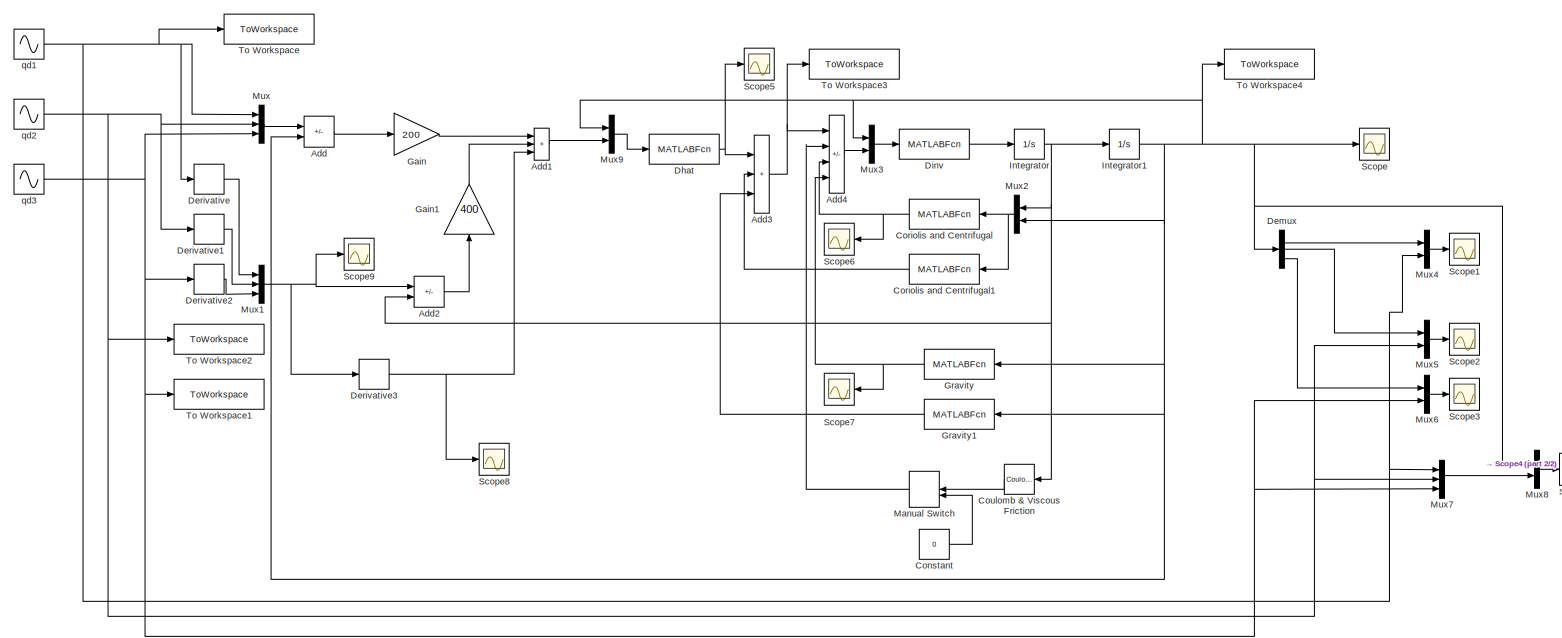
[diagram: root canvas - part 1/2, most of the canvas]
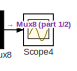
[diagram: root canvas - part 2/2, bottom right region]
MODEL slx_2917167c2496
KIND model
CONFIG AbsTol = auto
CONFIG EnableMultiTasking = off
CONFIG FixedStep = auto
CONFIG MaxStep = auto
CONFIG MinStep = auto
CONFIG RelTol = 1e-3
CONFIG SampleTimeConstraint = Unconstrained
CONFIG SolverName = VariableStepAuto
CONFIG StartTime = 0.0
CONFIG StopTime = 4.0
BLOCK [Sum] Add
  IconShape = rectangular
  Inputs = +-
BLOCK [Sum] Add1
  IconShape = rectangular
  Inputs = +++
BLOCK [Sum] Add2
  IconShape = rectangular
  Inputs = +-
BLOCK [Sum] Add3
  IconShape = rectangular
  Inputs = +++
BLOCK [Sum] Add4
  IconShape = rectangular
  Inputs = +---
BLOCK [Constant] Constant
  Value = 0
BLOCK [MATLABFcn] Coriolis and Centrifugal
  MATLABFcn = Coriolis3(u)
  Output1D = off
  OutputDimensions = 3
BLOCK [MATLABFcn] Coriolis and Centrifugal1
  MATLABFcn = Coriolis3(u)
  Output1D = off
  OutputDimensions = 3
BLOCK [Reference] Coulomb & Viscous Friction  REF=simulink/Discontinuities/Coulomb &
Viscous Friction
  SourceBlock = simulink/Discontinuities/Coulomb &\nViscous Friction
  SourceType = Coulombic and Viscous Friction
BLOCK [Demux] Demux
  Outputs = 3
BLOCK [Derivative] Derivative
BLOCK [Derivative] Derivative1
BLOCK [Derivative] Derivative2
BLOCK [Derivative] Derivative3
BLOCK [MATLABFcn] Dhat
  MATLABFcn = Dhat3(u)
  Output1D = off
  OutputDimensions = 3
BLOCK [MATLABFcn] Dinv
  MATLABFcn = Dinv3(u)
  Output1D = off
  OutputDimensions = 3
BLOCK [Gain] Gain
  Gain = 200
BLOCK [Gain] Gain1
  Gain = 400
  NameLocation = right
BLOCK [MATLABFcn] Gravity
  MATLABFcn = Gravity3(u)
  Output1D = off
  OutputDimensions = 3
BLOCK [MATLABFcn] Gravity1
  MATLABFcn = Gravity3(u)
  Output1D = off
  OutputDimensions = 3
BLOCK [Integrator] Integrator
  InitialCondition = [0;0;0];
BLOCK [Integrator] Integrator1
  InitialCondition = [pi/2;pi/2;-pi/2]
BLOCK [ManualSwitch] Manual Switch
  CurrentSetting = 0
BLOCK [Mux] Mux
  DisplayOption = bar
  Inputs = 3
BLOCK [Mux] Mux1
  DisplayOption = bar
  Inputs = 3
BLOCK [Mux] Mux2
  DisplayOption = bar
  Inputs = 2
BLOCK [Mux] Mux3
  DisplayOption = bar
  Inputs = 2
BLOCK [Mux] Mux4
  DisplayOption = bar
  Inputs = 2
BLOCK [Mux] Mux5
  DisplayOption = bar
  Inputs = 2
BLOCK [Mux] Mux6
  DisplayOption = bar
  Inputs = 2
BLOCK [Mux] Mux7
  DisplayOption = bar
  Inputs = 3
BLOCK [Mux] Mux8
  DisplayOption = bar
  Inputs = 2
BLOCK [Mux] Mux9
  DisplayOption = bar
  Inputs = 2
BLOCK [Scope] Scope
  Floating = off
  NumInputPorts = 1
  ScopeSpecificationString = Simulink.scopes.TimeScopeBlockCfg('CurrentConfiguration', extmgr.ConfigurationSet(extmgr.Configuration('Core','General UI',true,'FigureColor',[1 1 1]),extmgr.Configuration('Core','Source UI',true),extmgr.Configuration('Sources','WiredSimulink',true),extmgr.Configuration('Visuals','Time Domain',true,'SerializedDisplays',{struct('MinYLimReal','-3.2141','MaxYLimReal','3.21487','YLabelReal','','MinYLi...<+1591ch>
BLOCK [Scope] Scope1
  Floating = off
  NumInputPorts = 1
  ScopeSpecificationString = Simulink.scopes.TimeScopeBlockCfg('CurrentConfiguration', extmgr.ConfigurationSet(extmgr.Configuration('Core','General UI',true,'FigureColor',[1 1 1]),extmgr.Configuration('Core','Source UI',true),extmgr.Configuration('Sources','WiredSimulink',true,'DataLoggingVariableName','ScopeData1'),extmgr.Configuration('Visuals','Time Domain',true,'SerializedDisplays',{struct('MinYLimReal','0.32014','MaxYLim...<+1726ch>
BLOCK [Scope] Scope2
  Floating = off
  NumInputPorts = 1
  ScopeSpecificationString = Simulink.scopes.TimeScopeBlockCfg('CurrentConfiguration', extmgr.ConfigurationSet(extmgr.Configuration('Core','General UI',true,'FigureColor',[1 1 1]),extmgr.Configuration('Core','Source UI',true),extmgr.Configuration('Sources','WiredSimulink',true,'DataLoggingVariableName','ScopeData2'),extmgr.Configuration('Visuals','Time Domain',true,'SerializedDisplays',{struct('MinYLimReal','0.31944','MaxYLim...<+1622ch>
BLOCK [Scope] Scope3
  Floating = off
  NumInputPorts = 1
  ScopeSpecificationString = Simulink.scopes.TimeScopeBlockCfg('CurrentConfiguration', extmgr.ConfigurationSet(extmgr.Configuration('Core','General UI',true,'FigureColor',[1 1 1]),extmgr.Configuration('Core','Source UI',true),extmgr.Configuration('Sources','WiredSimulink',true,'DataLoggingVariableName','ScopeData3'),extmgr.Configuration('Visuals','Time Domain',true,'SerializedDisplays',{struct('MinYLimReal','-2.82139','MaxYLi...<+1627ch>
BLOCK [Scope] Scope4
  Floating = off
  NumInputPorts = 1
  ScopeSpecificationString = Simulink.scopes.TimeScopeBlockCfg('CurrentConfiguration', extmgr.ConfigurationSet(extmgr.Configuration('Core','General UI',true,'FigureColor',[1 1 1]),extmgr.Configuration('Core','Source UI',true),extmgr.Configuration('Sources','WiredSimulink',true,'DataLoggingVariableName','ScopeData1'),extmgr.Configuration('Visuals','Time Domain',true,'SerializedDisplays',{struct('MinYLimReal','-2.08864','MaxYLi...<+1966ch>
BLOCK [Scope] Scope5
  Floating = off
  NumInputPorts = 1
  ScopeSpecificationString = Simulink.scopes.TimeScopeBlockCfg('CurrentConfiguration', extmgr.ConfigurationSet(extmgr.Configuration('Core','General UI',true,'FigureColor',[1 1 1]),extmgr.Configuration('Core','Source UI',true),extmgr.Configuration('Sources','WiredSimulink',true,'DataLoggingVariableName','ScopeData1'),extmgr.Configuration('Visuals','Time Domain',true,'SerializedDisplays',{struct('MinYLimReal','-4718381217899.30...<+1705ch>
BLOCK [Scope] Scope6
  Floating = off
  NumInputPorts = 1
  ScopeSpecificationString = Simulink.scopes.TimeScopeBlockCfg('CurrentConfiguration', extmgr.ConfigurationSet(extmgr.Configuration('Core','General UI',true,'FigureColor',[1 1 1]),extmgr.Configuration('Core','Source UI',true),extmgr.Configuration('Sources','WiredSimulink',true,'DataLoggingVariableName','ScopeData2'),extmgr.Configuration('Visuals','Time Domain',true,'SerializedDisplays',{struct('MinYLimReal','-3.63876','MaxYLi...<+1603ch>
BLOCK [Scope] Scope7
  Floating = off
  NumInputPorts = 1
  ScopeSpecificationString = Simulink.scopes.TimeScopeBlockCfg('CurrentConfiguration', extmgr.ConfigurationSet(extmgr.Configuration('Core','General UI',true,'FigureColor',[1 1 1]),extmgr.Configuration('Core','Source UI',true),extmgr.Configuration('Sources','WiredSimulink',true,'DataLoggingVariableName','ScopeData3'),extmgr.Configuration('Visuals','Time Domain',true,'SerializedDisplays',{struct('MinYLimReal','-49.74284','MaxYL...<+1558ch>
BLOCK [Scope] Scope8
  Floating = off
  NumInputPorts = 1
  ScopeSpecificationString = Simulink.scopes.TimeScopeBlockCfg('CurrentConfiguration', extmgr.ConfigurationSet(extmgr.Configuration('Core','General UI',true,'FigureColor',[1 1 1]),extmgr.Configuration('Core','Source UI',true),extmgr.Configuration('Sources','WiredSimulink',true,'DataLoggingVariableName','ScopeData4'),extmgr.Configuration('Visuals','Time Domain',true,'SerializedDisplays',{struct('MinYLimReal','-2246655476.42895...<+1723ch>
BLOCK [Scope] Scope9
  Floating = off
  NumInputPorts = 1
  ScopeSpecificationString = Simulink.scopes.TimeScopeBlockCfg('CurrentConfiguration', extmgr.ConfigurationSet(extmgr.Configuration('Core','General UI',true,'FigureColor',[1 1 1]),extmgr.Configuration('Core','Source UI',true),extmgr.Configuration('Sources','WiredSimulink',true,'DataLoggingVariableName','ScopeData5'),extmgr.Configuration('Visuals','Time Domain',true,'SerializedDisplays',{struct('MinYLimReal','-1.25','MaxYLimRe...<+1607ch>
BLOCK [ToWorkspace] To Workspace
  FixptAsFi = on
  MaxDataPoints = inf
  SampleTime = 0.001
  SaveFormat = Timeseries
  VariableName = qd1
BLOCK [ToWorkspace] To Workspace1
  FixptAsFi = on
  MaxDataPoints = inf
  SampleTime = 0.001
  SaveFormat = Timeseries
  VariableName = qd3
BLOCK [ToWorkspace] To Workspace2
  FixptAsFi = on
  MaxDataPoints = inf
  SampleTime = 0.001
  SaveFormat = Timeseries
  VariableName = qd2
BLOCK [ToWorkspace] To Workspace3
  FixptAsFi = on
  MaxDataPoints = inf
  SampleTime = 0.001
  SaveFormat = Timeseries
  VariableName = tq
BLOCK [ToWorkspace] To Workspace4
  FixptAsFi = on
  MaxDataPoints = inf
  SampleTime = 0.001
  SaveFormat = Timeseries
  VariableName = q
BLOCK [Sin] qd1
  Bias = pi/2
  SampleTime = 0
BLOCK [Sin] qd2
  Amplitude = -1
  Bias = pi/2
  SampleTime = 0
BLOCK [Sin] qd3
  Bias = -pi/2
  SampleTime = 0
LINE Add1:1 -> Mux9:2
LINE Add2:1 -> Gain1:1
NET Add3:1 -> Add4:1, To Workspace3:1
LINE Add4:1 -> Mux3:2
LINE Add:1 -> Gain:1
LINE Constant:1 -> Manual Switch:2
LINE Coriolis and Centrifugal1:1 -> Add3:2
NET Coriolis and Centrifugal:1 -> Add4:3, Scope6:1
LINE Coulomb & Viscous Friction:1 -> Manual Switch:1
LINE Demux:1 -> Mux4:1
LINE Demux:2 -> Mux5:1
LINE Demux:3 -> Mux6:1
LINE Derivative1:1 -> Mux1:2
LINE Derivative2:1 -> Mux1:3
NET Derivative3:1 -> Add1:3, Scope8:1
LINE Derivative:1 -> Mux1:1
NET Dhat:1 -> Add3:1, Scope5:1
LINE Dinv:1 -> Integrator:1
LINE Gain1:1 -> Add1:2
LINE Gain:1 -> Add1:1
LINE Gravity1:1 -> Add3:3
NET Gravity:1 -> Add4:4, Scope7:1
NET Integrator1:1 -> Add:2, Demux:1, Gravity1:1, Gravity:1, Mux2:2, Mux3:1, Mux8:1, Mux9:1, Scope:1, To Workspace4:1
NET Integrator:1 -> Add2:2, Coulomb & Viscous Friction:1, Integrator1:1, Mux2:1
LINE Manual Switch:1 -> Add4:2
NET Mux1:1 -> Add2:1, Derivative3:1, Scope9:1
NET Mux2:1 -> Coriolis and Centrifugal1:1, Coriolis and Centrifugal:1
LINE Mux3:1 -> Dinv:1
LINE Mux4:1 -> Scope1:1
LINE Mux5:1 -> Scope2:1
LINE Mux6:1 -> Scope3:1
LINE Mux7:1 -> Mux8:2
LINE Mux8:1 -> Scope4:1
LINE Mux9:1 -> Dhat:1
LINE Mux:1 -> Add:1
NET qd1:1 -> Derivative:1, Mux4:2, Mux7:1, Mux:1, To Workspace:1
NET qd2:1 -> Derivative1:1, Mux5:2, Mux7:2, Mux:2, To Workspace2:1
NET qd3:1 -> Derivative2:1, Mux6:2, Mux7:3, Mux:3, To Workspace1:1
note: NET lines group one-source signal fan-out (src -> all destinations, sorted); 1:1 wires keep LINE
